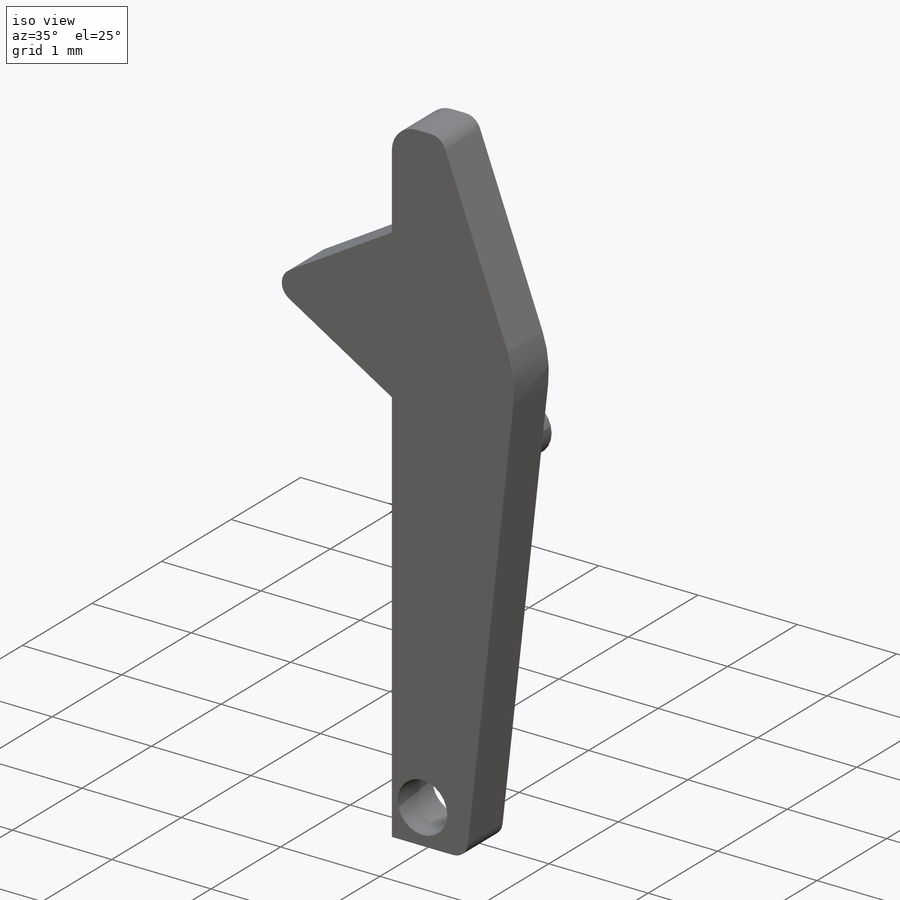
[diagram: iso view]
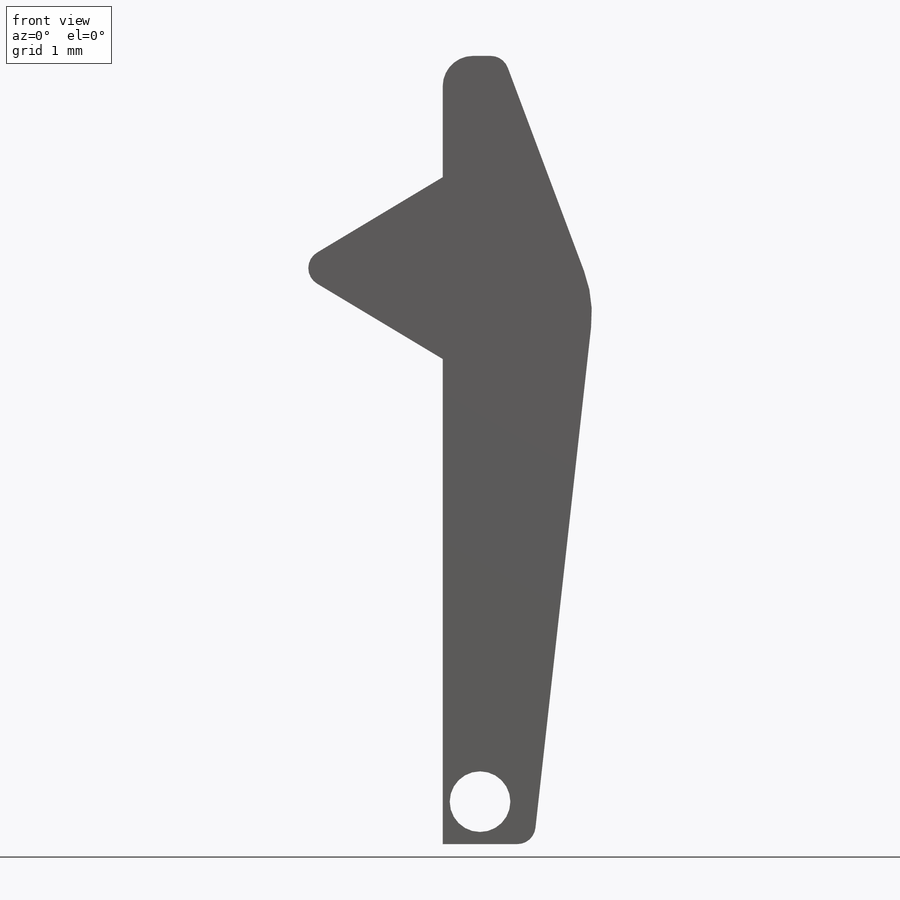
[diagram: front view]
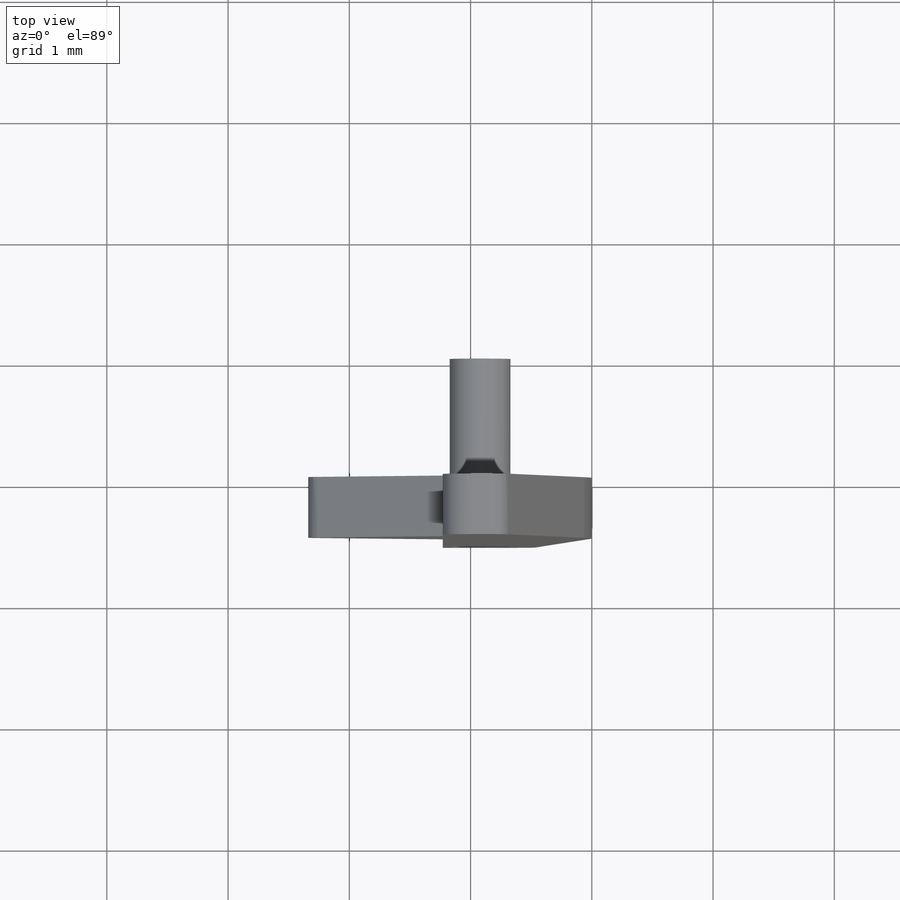
[diagram: top view]
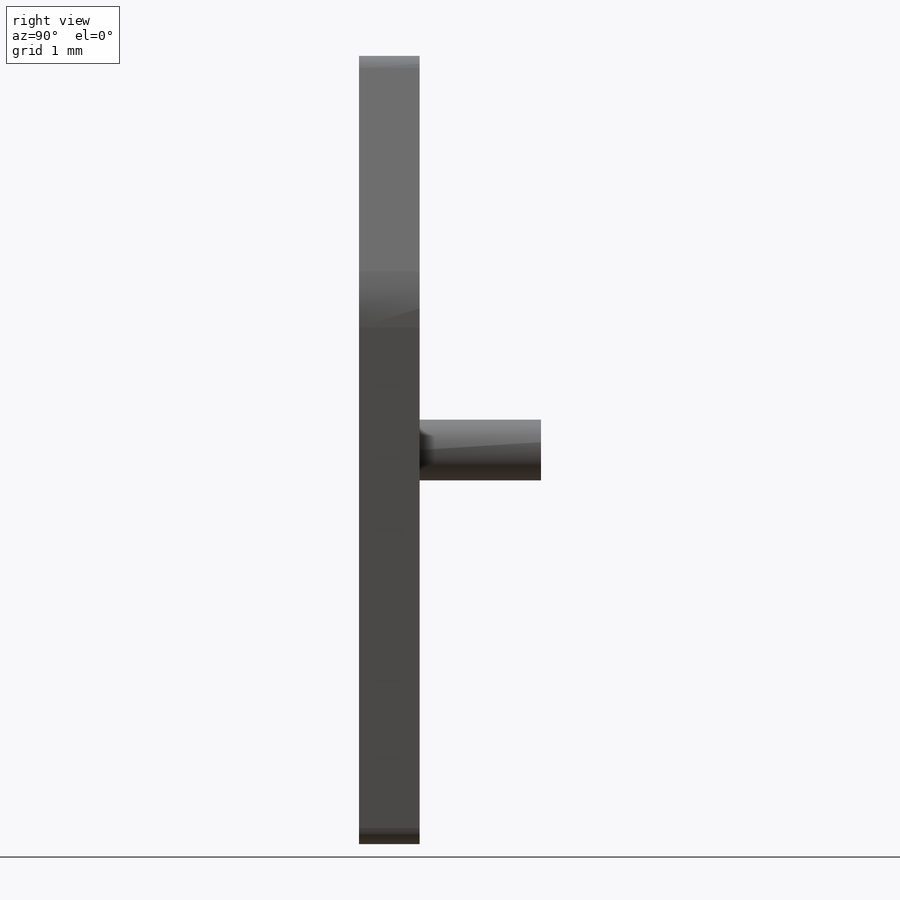
[diagram: right view]
SOLIDWORKS PART (.sldprt)
format: sldprt  version: not decoded by parser v0  size: 194,048 bytes
history: native  units: mm
features: plane x3, sketch x3, extrude x2, material x1, cut_extrude x1 (+8 scaffold rows collapsed)
feature tree (18):
  scaffold x8  (default folders/planes/origin — collapsed)
  material  "Material <sin especificar>"
  plane  "Alzado"
  plane  "Planta"
  plane  "Vista lateral"
  sketch  "Croquis1"  dims[c1.D7=1.0mm c1.D8=0.5mm c1.D9=0.5mm c1.D10=0.15mm c1.D11=1.0mm c1.D12=0.15mm c1.D13=0.25mm c1.D1=1.75mm c1.D2=~2.448195mm c2.D2=5.0deg c2.D3=0.5mm c3.D3=~177.73916deg c4.D3=0.75mm c4.D4=4.0mm c4.D5=~0.992508mm c5.D5=30.0deg c5.D6=1.5mm c5.D1=6.5mm c5.D2=0.5mm c5.D4=2.0mm c6.D5=1.5mm c6.D6=6.0mm c7.D5=1.25mm c7.D6=2.0mm c7.D4=0.75mm c7.D7=0.75mm c7.D8=1.0mm c7.D9=1.25mm]
  extrude  "Saliente-Extruir1"  Depth=0.5mm
  sketch  "Croquis2"  dims[D2=0.5mm D1=0.35mm]
  sketch  "Croquis3"  dims[c1.D1=0.5mm c1.D2=~0.421775mm c2.D1=3.25mm]
  extrude  "Saliente-Extruir3"  Depth=1mm
  cut_extrude  "Cortar-Extruir1"  [1 undecoded]
decode coverage: 5 of 6 modeling features carry decoded parameters
note: ~ marks probable driven/reference dimensions
note: 1 parameter value undecoded
note: suppression state not decoded; provenance and decode notes live in map.json
